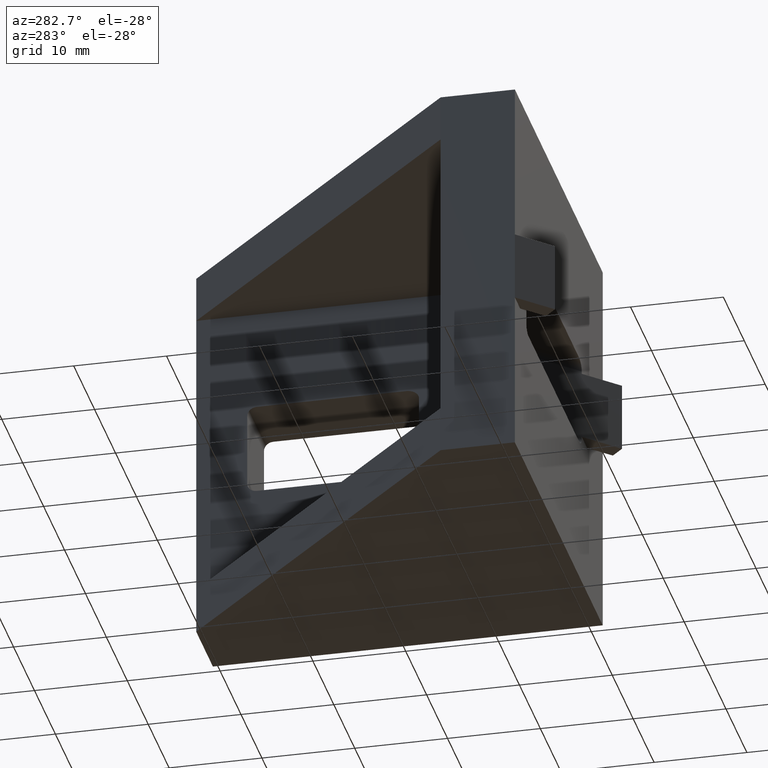
[diagram: clean part render]
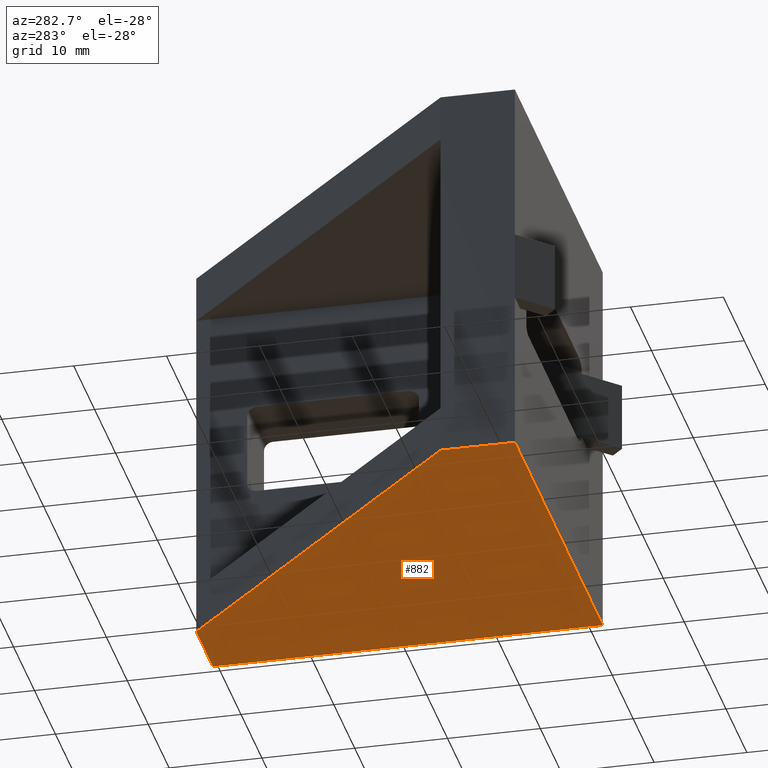
[diagram: same view with one face highlighted and labeled with its STEP entity id]
A machine part, auxiliary view. The second image highlights one B-rep face of the part: STEP entity #882.
In plain terms, the highlighted planar face has unit normal (-0, 0, 1).
Its self-contained STEP definition (entity closure, byte-faithful):
#56=PLANE('',#946);
#102=FACE_OUTER_BOUND('',#150,.T.);
#150=EDGE_LOOP('',(#776,#777,#778,#779,#780));
#236=LINE('',#1380,#344);
#248=LINE('',#1399,#356);
#253=LINE('',#1411,#361);
#254=LINE('',#1412,#362);
#255=LINE('',#1413,#363);
#344=VECTOR('',#1130,42.);
#356=VECTOR('',#1148,42.);
#361=VECTOR('',#1157,48.0832611206852);
#362=VECTOR('',#1158,8.);
#363=VECTOR('',#1159,8.);
#449=VERTEX_POINT('',#1377);
#450=VERTEX_POINT('',#1379);
#454=VERTEX_POINT('',#1398);
#458=VERTEX_POINT('',#1409);
#459=VERTEX_POINT('',#1410);
#556=EDGE_CURVE('',#450,#449,#236,.T.);
#568=EDGE_CURVE('',#454,#450,#248,.T.);
#573=EDGE_CURVE('',#458,#459,#253,.T.);
#574=EDGE_CURVE('',#458,#454,#254,.T.);
#575=EDGE_CURVE('',#449,#459,#255,.T.);
#776=ORIENTED_EDGE('',*,*,#573,.F.);
#777=ORIENTED_EDGE('',*,*,#574,.T.);
#778=ORIENTED_EDGE('',*,*,#568,.T.);
#779=ORIENTED_EDGE('',*,*,#556,.T.);
#780=ORIENTED_EDGE('',*,*,#575,.T.);
#882=ADVANCED_FACE('',(#102),#56,.F.);
#946=AXIS2_PLACEMENT_3D('',#1408,#1155,#1156);
#1130=DIRECTION('',(-1.,0.,0.));
#1148=DIRECTION('',(0.,-1.,0.));
#1155=DIRECTION('center_axis',(-1.74627545648522E-31,2.25309428352789E-31,
1.));
#1156=DIRECTION('ref_axis',(1.,0.,0.));
#1157=DIRECTION('',(-0.707106781186547,-0.707106781186548,0.));
#1158=DIRECTION('',(1.,5.55111512312578E-16,0.));
#1159=DIRECTION('',(5.55111512312578E-16,1.,0.));
#1377=CARTESIAN_POINT('',(-21.,-21.,-21.));
#1379=CARTESIAN_POINT('',(21.,-21.,-21.));
#1380=CARTESIAN_POINT('',(21.,-21.,-21.));
#1398=CARTESIAN_POINT('',(21.,21.,-21.));
#1399=CARTESIAN_POINT('',(21.,21.,-21.));
#1408=CARTESIAN_POINT('Origin',(10.5189949563673,-10.5189949563673,-21.));
#1409=CARTESIAN_POINT('',(13.,21.,-21.));
#1410=CARTESIAN_POINT('',(-21.,-13.,-21.));
#1411=CARTESIAN_POINT('',(-42.,-34.0000000000001,-21.));
#1412=CARTESIAN_POINT('',(13.,21.,-21.));
#1413=CARTESIAN_POINT('',(-21.,-21.,-21.));